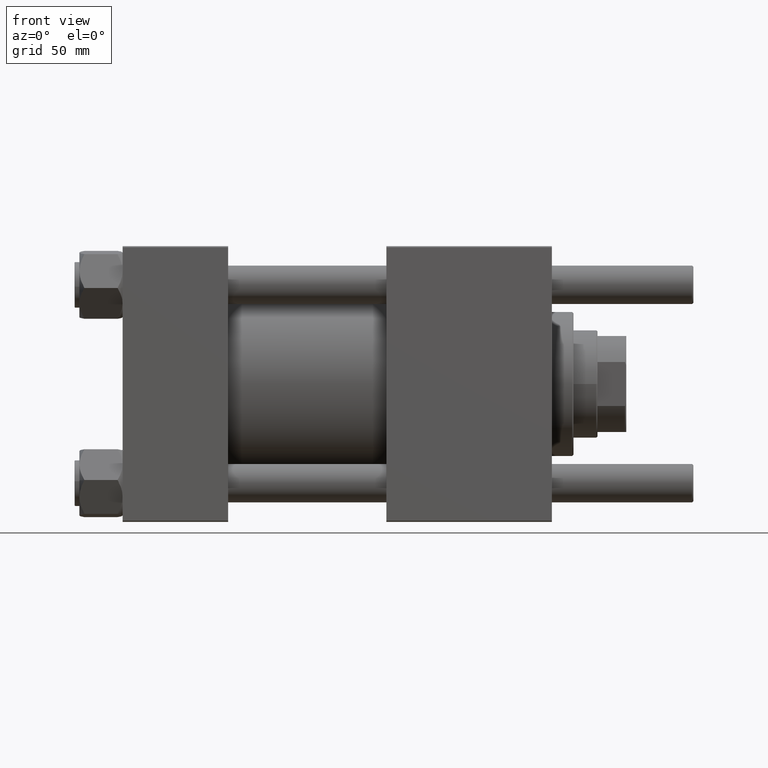
[diagram: clean part render]
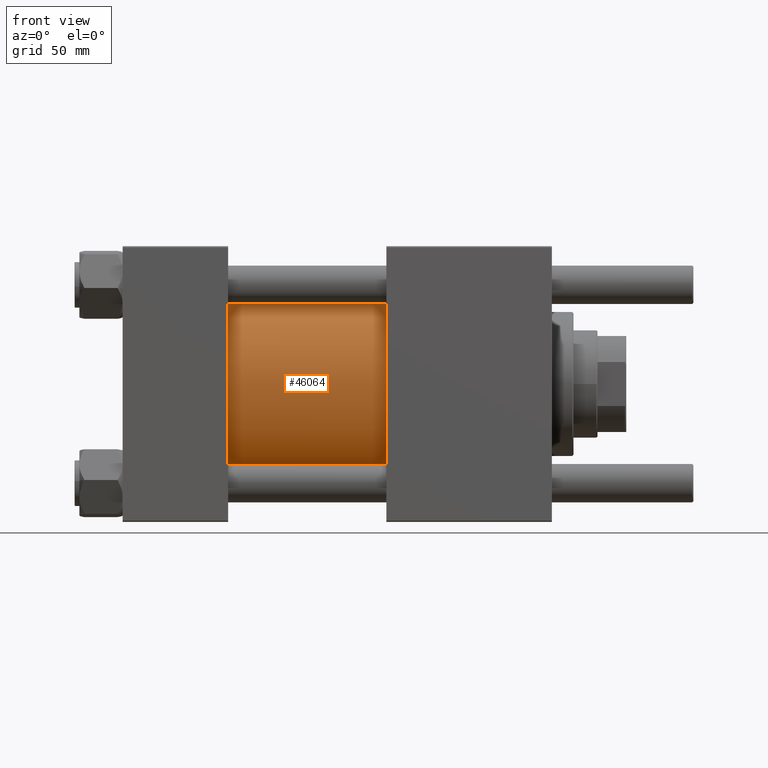
[diagram: same view with one face highlighted and labeled with its STEP entity id]
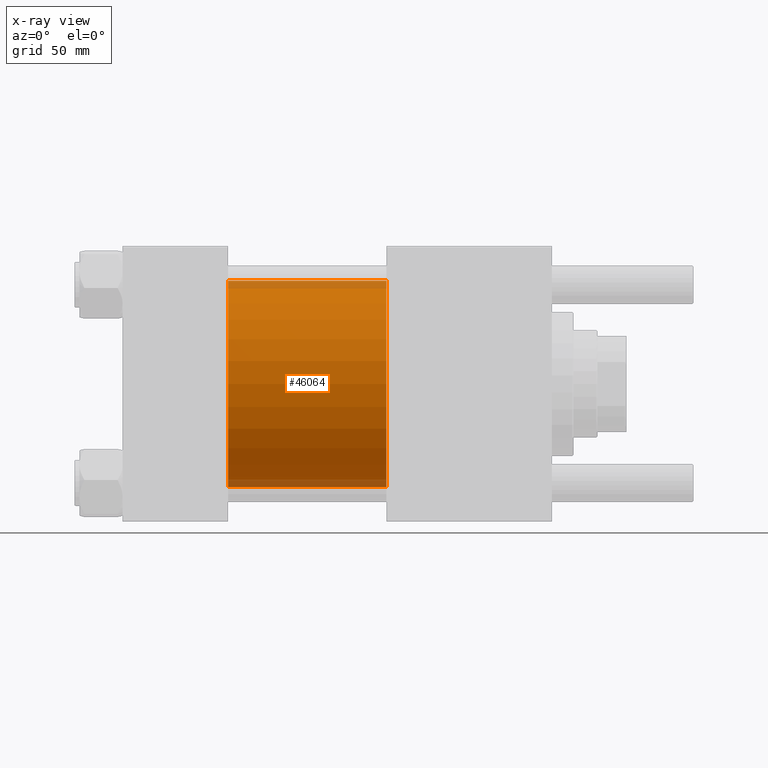
[diagram: x-ray of the same camera — body ghosted, the highlighted face saturated]
A machine part, front view. The second image highlights one B-rep face of the part: STEP entity #46064.
The next image is the same camera in x-ray: the body ghosted, the highlighted face saturated — about 8% of this face is hidden behind the body in this view.
In plain terms, the highlighted cylindrical surface (partial cylindrical patch) has radius 43 mm, axis along (-1, -0, -0).
Its self-contained STEP definition (entity closure, byte-faithful):
#48 = CARTESIAN_POINT ( 'NONE',  ( 110.0000000000000000, -2.602085213965210642E-15, 0.000000000000000000 ) ) ;
#2755 = VERTEX_POINT ( 'NONE', #8014 ) ;
#4232 = LINE ( 'NONE', #52212, #38075 ) ;
#5985 = EDGE_CURVE ( 'NONE', #41779, #2755, #4232, .T. ) ;
#6260 = ORIENTED_EDGE ( 'NONE', *, *, #55686, .F. ) ;
#6544 = VECTOR ( 'NONE', #24855, 1000.000000000000000 ) ;
#7600 = ORIENTED_EDGE ( 'NONE', *, *, #25046, .T. ) ;
#8014 = CARTESIAN_POINT ( 'NONE',  ( 44.00000000000000000, 2.663896022368408223E-15, -43.00000000000000000 ) ) ;
#8117 = VERTEX_POINT ( 'NONE', #45563 ) ;
#9877 = LINE ( 'NONE', #37601, #6544 ) ;
#11382 = CARTESIAN_POINT ( 'NONE',  ( 110.0000000000000000, -2.602085213965210642E-15, 0.000000000000000000 ) ) ;
#15161 = EDGE_LOOP ( 'NONE', ( #39308, #6260, #7600, #20029 ) ) ;
#15736 = CYLINDRICAL_SURFACE ( 'NONE', #54878, 43.00000000000000000 ) ;
#16946 = DIRECTION ( 'NONE',  ( 1.000000000000000000, -0.000000000000000000, 0.000000000000000000 ) ) ;
#17814 = DIRECTION ( 'NONE',  ( -1.000000000000000000, -0.000000000000000000, -0.000000000000000000 ) ) ;
#19209 = FACE_OUTER_BOUND ( 'NONE', #15161, .T. ) ;
#20029 = ORIENTED_EDGE ( 'NONE', *, *, #27533, .T. ) ;
#20684 = DIRECTION ( 'NONE',  ( 0.000000000000000000, 0.000000000000000000, 1.000000000000000000 ) ) ;
#22029 = DIRECTION ( 'NONE',  ( 1.000000000000000000, 0.000000000000000000, 0.000000000000000000 ) ) ;
#24855 = DIRECTION ( 'NONE',  ( -1.000000000000000000, -0.000000000000000000, -0.000000000000000000 ) ) ;
#25046 = EDGE_CURVE ( 'NONE', #34550, #8117, #9877, .T. ) ;
#27533 = EDGE_CURVE ( 'NONE', #8117, #2755, #27728, .T. ) ;
#27728 = CIRCLE ( 'NONE', #43397, 43.00000000000000000 ) ;
#33929 = AXIS2_PLACEMENT_3D ( 'NONE', #48, #22029, #35340 ) ;
#34550 = VERTEX_POINT ( 'NONE', #47958 ) ;
#35340 = DIRECTION ( 'NONE',  ( 0.000000000000000000, 0.000000000000000000, -1.000000000000000000 ) ) ;
#36859 = DIRECTION ( 'NONE',  ( 0.000000000000000000, 0.000000000000000000, 1.000000000000000000 ) ) ;
#37601 = CARTESIAN_POINT ( 'NONE',  ( 110.0000000000000000, -2.602085213965210642E-15, 43.00000000000000000 ) ) ;
#38075 = VECTOR ( 'NONE', #17814, 1000.000000000000000 ) ;
#39308 = ORIENTED_EDGE ( 'NONE', *, *, #5985, .F. ) ;
#41748 = DIRECTION ( 'NONE',  ( -1.000000000000000000, -0.000000000000000000, -0.000000000000000000 ) ) ;
#41779 = VERTEX_POINT ( 'NONE', #54055 ) ;
#43397 = AXIS2_PLACEMENT_3D ( 'NONE', #56515, #16946, #20684 ) ;
#45563 = CARTESIAN_POINT ( 'NONE',  ( 44.00000000000000000, -2.602085213965210642E-15, 43.00000000000000000 ) ) ;
#46064 = ADVANCED_FACE ( 'NONE', ( #19209 ), #15736, .T. ) ;
#47958 = CARTESIAN_POINT ( 'NONE',  ( 110.0000000000000000, -2.602085213965210642E-15, 43.00000000000000000 ) ) ;
#49648 = CIRCLE ( 'NONE', #33929, 43.00000000000000000 ) ;
#52212 = CARTESIAN_POINT ( 'NONE',  ( 110.0000000000000000, 2.663896022368408223E-15, -43.00000000000000000 ) ) ;
#54055 = CARTESIAN_POINT ( 'NONE',  ( 110.0000000000000000, 2.663896022368408223E-15, -43.00000000000000000 ) ) ;
#54878 = AXIS2_PLACEMENT_3D ( 'NONE', #11382, #41748, #36859 ) ;
#55686 = EDGE_CURVE ( 'NONE', #34550, #41779, #49648, .T. ) ;
#56515 = CARTESIAN_POINT ( 'NONE',  ( 44.00000000000000000, -2.602085213965210642E-15, 0.000000000000000000 ) ) ;